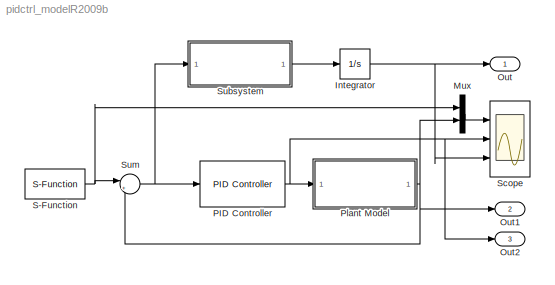
MODEL pidctrl_modelR2009b
KIND model
BLOCK [Integrator] Integrator
  Ports = [1, 1]
  SID = 7
BLOCK [Mux] Mux
  DisplayOption = bar
  Inputs = 2
  Ports = [2, 1]
  SID = 6
BLOCK [Outport] Out
  IconDisplay = Port number
  SID = 17
BLOCK [Outport] Out1
  IconDisplay = Port number
  Port = 2
  SID = 23
BLOCK [Outport] Out2
  IconDisplay = Port number
  Port = 3
  SID = 24
BLOCK [Reference] PID Controller  REF=simulink/Continuous/PID Controller
  AntiWindupMode = none
  Controller = PID
  D = Kd
  DOutDataTypeStr = Inherit: Inherit via internal rule
  DOutMax = []
  DOutMin = []
  DParamDataTypeStr = Inherit: Inherit via internal rule
  DParamMax = []
  DParamMin = []
  ExternalReset = none
  FilterContinuousStateAttributes = ''
  FilterMethod = Forward Euler
  FilterOutDataTypeStr = Inherit: Inherit via internal rule
  FilterOutMax = []
  FilterOutMin = []
  FilterRTWStateStorageClass = Auto
  FilterStateMustResolveToSignalObject = off
  Form = Parallel
  FunctionWithSeparateData = off
  I = Ki
  IOutDataTypeStr = Inherit: Inherit via internal rule
  IOutMax = []
  IOutMin = []
  IParamDataTypeStr = Inherit: Inherit via internal rule
  IParamMax = []
  IParamMin = []
  IgnoreLimit = off
  InitialConditionForFilter = 0
  InitialConditionForIntegrator = 0
  InitialConditionSource = internal
  IntegratorContinuousStateAttributes = ''
  IntegratorMethod = Forward Euler
  IntegratorOutDataTypeStr = Inherit: Inherit via internal rule
  IntegratorOutMax = []
  IntegratorOutMin = []
  IntegratorRTWStateStorageClass = Auto
  IntegratorStateMustResolveToSignalObject = off
  Kb = 1
  KbOutDataTypeStr = Inherit: Inherit via internal rule
  KbOutMax = []
  KbOutMin = []
  KbParamDataTypeStr = Inherit: Inherit via internal rule
  KbParamMax = []
  KbParamMin = []
  Kt = 1
  KtOutDataTypeStr = Inherit: Inherit via internal rule
  KtOutMax = []
  KtOutMin = []
  KtParamDataTypeStr = Inherit: Inherit via internal rule
  KtParamMax = []
  KtParamMin = []
  LimitOutput = off
  LinearizeAsGain = off
  LockScale = off
  LowerSaturationLimit = -inf
  N = 100
  NOutDataTypeStr = Inherit: Inherit via internal rule
  NOutMax = []
  NOutMin = []
  NParamDataTypeStr = Inherit: Inherit via internal rule
  NParamMax = []
  NParamMin = []
  P = Kp
  POutDataTypeStr = Inherit: Inherit via internal rule
  POutMax = []
  POutMin = []
  PParamDataTypeStr = Inherit: Inherit via internal rule
  PParamMax = []
  PParamMin = []
  Ports = [1, 1]
  RTWMemSecDataConstants = Inherit from model
  RTWMemSecDataInternal = Inherit from model
  RTWMemSecDataParameters = Inherit from model
  RTWMemSecFuncExecute = Inherit from model
  RTWMemSecFuncInitTerm = Inherit from model
  RndMeth = Floor
  SID = 1
  SampleTime = 1
  SaturateOnIntegerOverflow = off
  SaturationOutDataTypeStr = Inherit: Same as input
  SaturationOutMax = []
  SaturationOutMin = []
  ShowPortLabels = FromPortIcon
  SourceBlock = simulink/Continuous/PID Controller
  SourceType = PID 1dof
  SumAccumDataTypeStr = Inherit: Inherit via internal rule
  SumDAccumDataTypeStr = Inherit: Inherit via internal rule
  SumDOutDataTypeStr = Inherit: Inherit via internal rule
  SumDOutMax = []
  SumDOutMin = []
  SumI1AccumDataTypeStr = Inherit: Inherit via internal rule
  SumI1OutDataTypeStr = Inherit: Inherit via internal rule
  SumI1OutMax = []
  SumI1OutMin = []
  SumI2AccumDataTypeStr = Inherit: Inherit via internal rule
  SumI2OutDataTypeStr = Inherit: Inherit via internal rule
  SumI2OutMax = []
  SumI2OutMin = []
  SumI3AccumDataTypeStr = Inherit: Inherit via internal rule
  SumI3OutDataTypeStr = Inherit: Inherit via internal rule
  SumI3OutMax = []
  SumI3OutMin = []
  SumOutDataTypeStr = Inherit: Inherit via internal rule
  SumOutMax = []
  SumOutMin = []
  SystemSampleTime = -1
  TimeDomain = Continuous-time
  TrackingMode = off
  UpperSaturationLimit = inf
  ZeroCross = on
BLOCK [ModelReference] Plant Model
  CopyOfModelName = mod_1
  DefaultDataLogging = on
  ModelNameDialog = mod_1
  ModelReferenceVersion = 1.3
  Ports = [1, 1]
  SID = 3
BLOCK [S-Function] S-Function
  EnableBusSupport = off
  FunctionName = multi_step
  Parameters = t_seq, y_seq
  Ports = [0, 1]
  SID = 4
BLOCK [Scope] Scope
  DataFormat = StructureWithTime
  Floating = off
  LimitDataPoints = off
  NumInputPorts = 3
  Ports = [3]
  SID = 2
  SampleTime = 0
  SaveName = yy
  YMax = 1.5~40~1.5
  YMin = 0~0~0
  ZoomMode = xonly
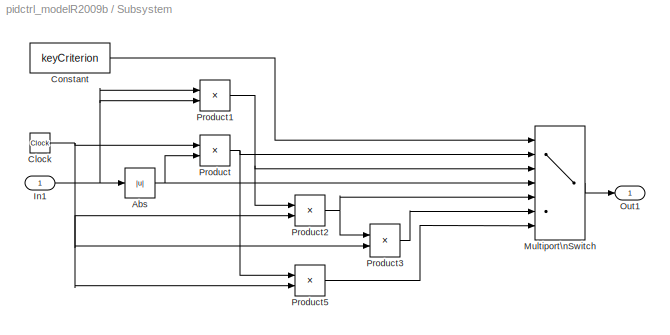
BLOCK [SubSystem] Subsystem
  FunctionWithSeparateData = off
  MaskHideContents = off
  MinAlgLoopOccurrences = off
  Opaque = off
  Ports = [1, 1]
  PropExecContextOutsideSubsystem = off
  RTWSystemCode = Auto
  RequestExecContextInheritance = off
  SID = 8
BLOCK [Abs] Subsystem/Abs
  SID = 10
  SaturateOnIntegerOverflow = off
BLOCK [Clock] Subsystem/Clock
  Decimation = 10
  SID = 11
BLOCK [Constant] Subsystem/Constant
  SID = 12
  Value = keyCriterion
BLOCK [Inport] Subsystem/In1
  IconDisplay = Port number
  SID = 9
BLOCK [MultiPortSwitch] Subsystem/Multiport\nSwitch
  InputSameDT = off
  Inputs = 6
  Ports = [7, 1]
  SID = 13
  SaturateOnIntegerOverflow = off
  zeroidx = off
BLOCK [Outport] Subsystem/Out1
  IconDisplay = Port number
  SID = 16
BLOCK [Product] Subsystem/Product
  InputSameDT = off
  OutDataTypeMode = Inherit via internal rule
  OutDataTypeStr = Inherit: Inherit via internal rule
  Ports = [2, 1]
  SID = 14
  SaturateOnIntegerOverflow = off
BLOCK [Product] Subsystem/Product1
  InputSameDT = off
  OutDataTypeMode = Inherit via internal rule
  OutDataTypeStr = Inherit: Inherit via internal rule
  Ports = [2, 1]
  SID = 15
  SaturateOnIntegerOverflow = off
BLOCK [Product] Subsystem/Product2
  InputSameDT = off
  OutDataTypeMode = Inherit via internal rule
  OutDataTypeStr = Inherit: Inherit via internal rule
  Ports = [2, 1]
  SID = 18
  SaturateOnIntegerOverflow = off
BLOCK [Product] Subsystem/Product3
  InputSameDT = off
  OutDataTypeMode = Inherit via internal rule
  OutDataTypeStr = Inherit: Inherit via internal rule
  Ports = [2, 1]
  SID = 19
  SaturateOnIntegerOverflow = off
BLOCK [Product] Subsystem/Product5
  InputSameDT = off
  OutDataTypeMode = Inherit via internal rule
  OutDataTypeStr = Inherit: Inherit via internal rule
  Ports = [2, 1]
  SID = 21
  SaturateOnIntegerOverflow = off
BLOCK [Sum] Sum
  IconShape = round
  InputSameDT = off
  Inputs = |+-
  OutDataTypeMode = Inherit via internal rule
  OutDataTypeStr = Inherit: Inherit via internal rule
  Ports = [2, 1]
  SID = 5
  SaturateOnIntegerOverflow = off
NET Integrator:1 -> Out:1, Scope:3
LINE Mux:1 -> Scope:1
NET PID Controller:1 -> Out2:1, Plant Model:1, Scope:2
NET Plant Model:1 -> Mux:2, Out1:1, Sum:2
NET S-Function:1 -> Mux:1, Sum:1
NET Subsystem/Abs:1 -> Subsystem/Multiport\nSwitch:4, Subsystem/Product:2
NET Subsystem/Clock:1 -> Subsystem/Product2:2, Subsystem/Product3:2, Subsystem/Product5:2, Subsystem/Product:1
LINE Subsystem/Constant:1 -> Subsystem/Multiport\nSwitch:1
NET Subsystem/In1:1 -> Subsystem/Abs:1, Subsystem/Product1:1, Subsystem/Product1:2
LINE Subsystem/Multiport\nSwitch:1 -> Subsystem/Out1:1
NET Subsystem/Product1:1 -> Subsystem/Multiport\nSwitch:3, Subsystem/Product2:1
NET Subsystem/Product2:1 -> Subsystem/Multiport\nSwitch:5, Subsystem/Product3:1
LINE Subsystem/Product3:1 -> Subsystem/Multiport\nSwitch:6
LINE Subsystem/Product5:1 -> Subsystem/Multiport\nSwitch:7
NET Subsystem/Product:1 -> Subsystem/Multiport\nSwitch:2, Subsystem/Product5:1
LINE Subsystem:1 -> Integrator:1
NET Sum:1 -> PID Controller:1, Subsystem:1
note: NET lines group one-source signal fan-out (src -> all destinations, sorted); 1:1 wires keep LINE
